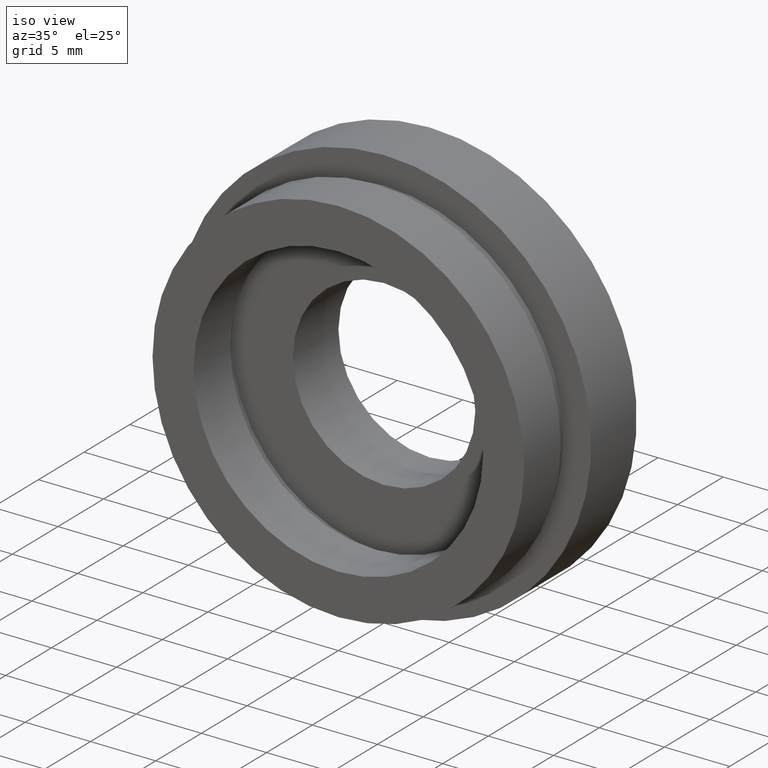
[diagram: clean part render]
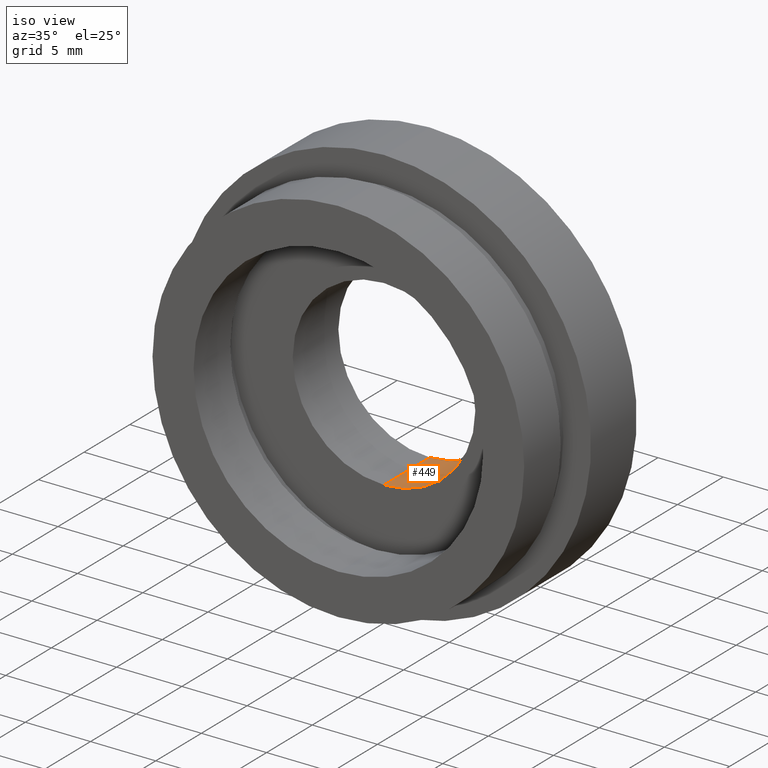
[diagram: same view with one face highlighted and labeled with its STEP entity id]
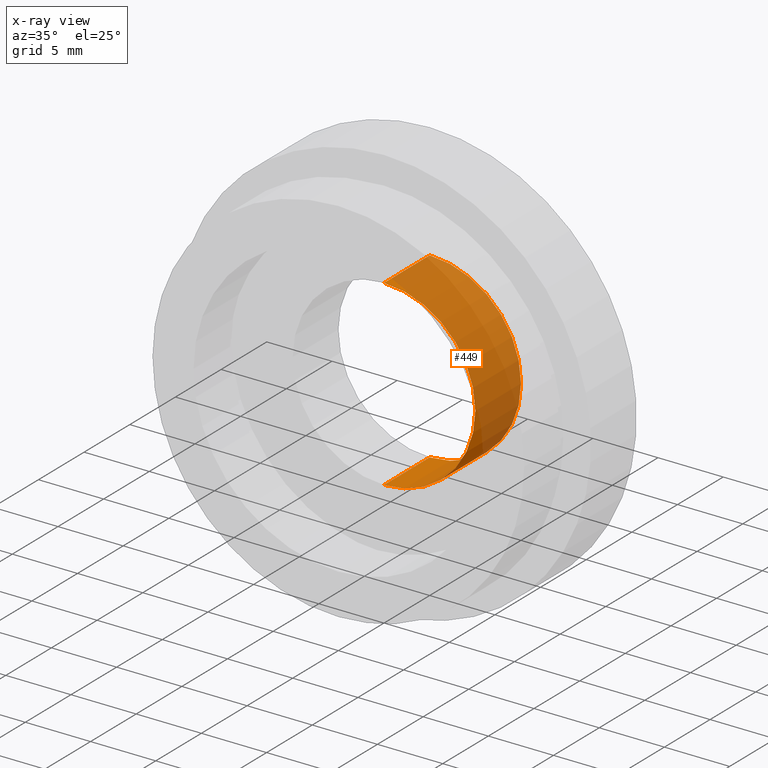
[diagram: x-ray of the same camera — body ghosted, the highlighted face saturated]
A machine part, iso view. The second image highlights one B-rep face of the part: STEP entity #449.
The next image is the same camera in x-ray: the body ghosted, the highlighted face saturated — about 84% of this face is hidden behind the body in this view.
In plain terms, the highlighted cylindrical surface (partial cylindrical patch) has radius 7 mm, axis along (-0, 1, -0).
Its self-contained STEP definition (entity closure, byte-faithful):
#60 = ORIENTED_EDGE ( 'NONE', *, *, #361, .T. ) ;
#62 = LINE ( 'NONE', #354, #391 ) ;
#74 = CARTESIAN_POINT ( 'NONE',  ( 0.0000000000000000000, 10.00000000000000000, 0.0000000000000000000 ) ) ;
#79 = EDGE_CURVE ( 'NONE', #611, #620, #485, .T. ) ;
#99 = CYLINDRICAL_SURFACE ( 'NONE', #500, 7.000000000000001800 ) ;
#113 = CIRCLE ( 'NONE', #502, 7.000000000000001800 ) ;
#135 = VERTEX_POINT ( 'NONE', #268 ) ;
#151 = DIRECTION ( 'NONE',  ( 0.0000000000000000000, 0.0000000000000000000, 1.000000000000000000 ) ) ;
#181 = FACE_OUTER_BOUND ( 'NONE', #187, .T. ) ;
#187 = EDGE_LOOP ( 'NONE', ( #478, #246, #372, #60 ) ) ;
#208 = DIRECTION ( 'NONE',  ( 0.0000000000000000000, 0.0000000000000000000, 1.000000000000000000 ) ) ;
#210 = DIRECTION ( 'NONE',  ( -0.0000000000000000000, 1.000000000000000000, -0.0000000000000000000 ) ) ;
#229 = DIRECTION ( 'NONE',  ( 0.0000000000000000000, 0.0000000000000000000, 1.000000000000000000 ) ) ;
#243 = VECTOR ( 'NONE', #260, 1000.000000000000000 ) ;
#246 = ORIENTED_EDGE ( 'NONE', *, *, #79, .F. ) ;
#260 = DIRECTION ( 'NONE',  ( -0.0000000000000000000, 1.000000000000000000, -0.0000000000000000000 ) ) ;
#268 = CARTESIAN_POINT ( 'NONE',  ( 0.0000000000000000000, 10.00000000000000000, 7.000000000000001800 ) ) ;
#272 = CARTESIAN_POINT ( 'NONE',  ( 8.572527594031474200E-016, 4.999999999999999100, -7.000000000000001800 ) ) ;
#279 = EDGE_CURVE ( 'NONE', #611, #135, #348, .T. ) ;
#310 = CARTESIAN_POINT ( 'NONE',  ( 0.0000000000000000000, 4.999999999999999100, 0.0000000000000000000 ) ) ;
#311 = AXIS2_PLACEMENT_3D ( 'NONE', #310, #608, #208 ) ;
#348 = LINE ( 'NONE', #484, #243 ) ;
#354 = CARTESIAN_POINT ( 'NONE',  ( 8.572527594031474200E-016, 17.41929831819392000, -7.000000000000001800 ) ) ;
#357 = DIRECTION ( 'NONE',  ( -0.0000000000000000000, 1.000000000000000000, -0.0000000000000000000 ) ) ;
#361 = EDGE_CURVE ( 'NONE', #135, #578, #113, .T. ) ;
#372 = ORIENTED_EDGE ( 'NONE', *, *, #279, .T. ) ;
#391 = VECTOR ( 'NONE', #210, 1000.000000000000000 ) ;
#405 = CARTESIAN_POINT ( 'NONE',  ( 8.572527594031474200E-016, 10.00000000000000000, -7.000000000000001800 ) ) ;
#449 = ADVANCED_FACE ( 'NONE', ( #181 ), #99, .F. ) ;
#478 = ORIENTED_EDGE ( 'NONE', *, *, #605, .F. ) ;
#484 = CARTESIAN_POINT ( 'NONE',  ( 0.0000000000000000000, 17.41929831819392000, 7.000000000000001800 ) ) ;
#485 = CIRCLE ( 'NONE', #311, 7.000000000000001800 ) ;
#497 = CARTESIAN_POINT ( 'NONE',  ( 0.0000000000000000000, 17.41929831819392000, 0.0000000000000000000 ) ) ;
#500 = AXIS2_PLACEMENT_3D ( 'NONE', #497, #357, #151 ) ;
#502 = AXIS2_PLACEMENT_3D ( 'NONE', #74, #522, #229 ) ;
#522 = DIRECTION ( 'NONE',  ( -0.0000000000000000000, 1.000000000000000000, -0.0000000000000000000 ) ) ;
#562 = CARTESIAN_POINT ( 'NONE',  ( 0.0000000000000000000, 4.999999999999999100, 7.000000000000001800 ) ) ;
#578 = VERTEX_POINT ( 'NONE', #405 ) ;
#605 = EDGE_CURVE ( 'NONE', #620, #578, #62, .T. ) ;
#608 = DIRECTION ( 'NONE',  ( -0.0000000000000000000, 1.000000000000000000, -0.0000000000000000000 ) ) ;
#611 = VERTEX_POINT ( 'NONE', #562 ) ;
#620 = VERTEX_POINT ( 'NONE', #272 ) ;